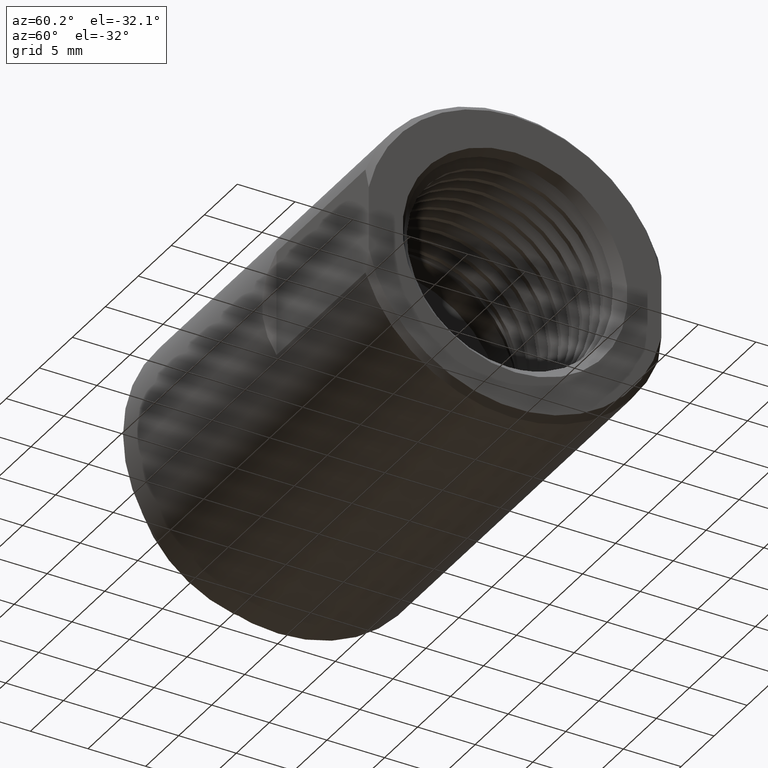
[diagram: clean part render]
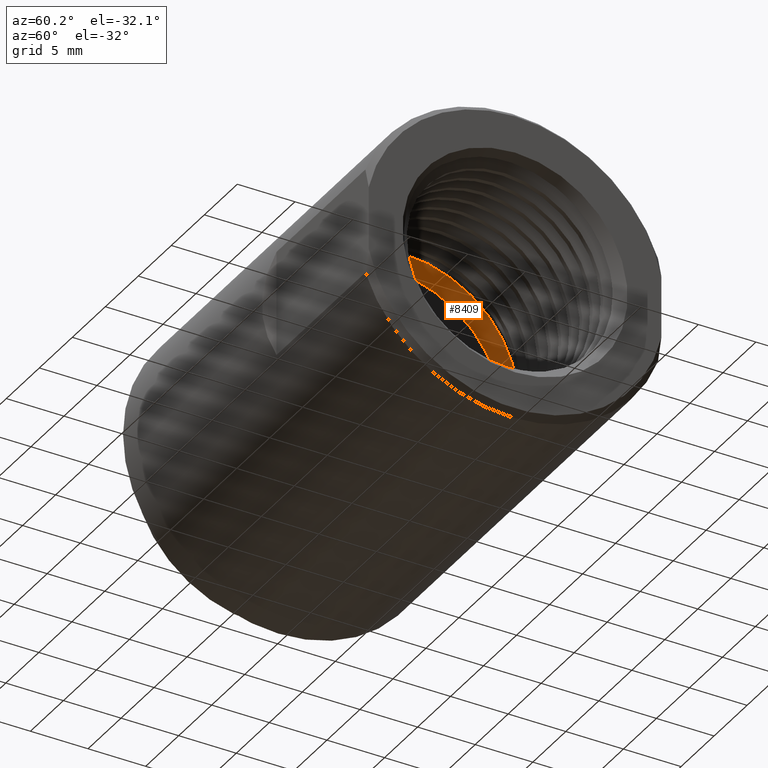
[diagram: same view with one face highlighted and labeled with its STEP entity id]
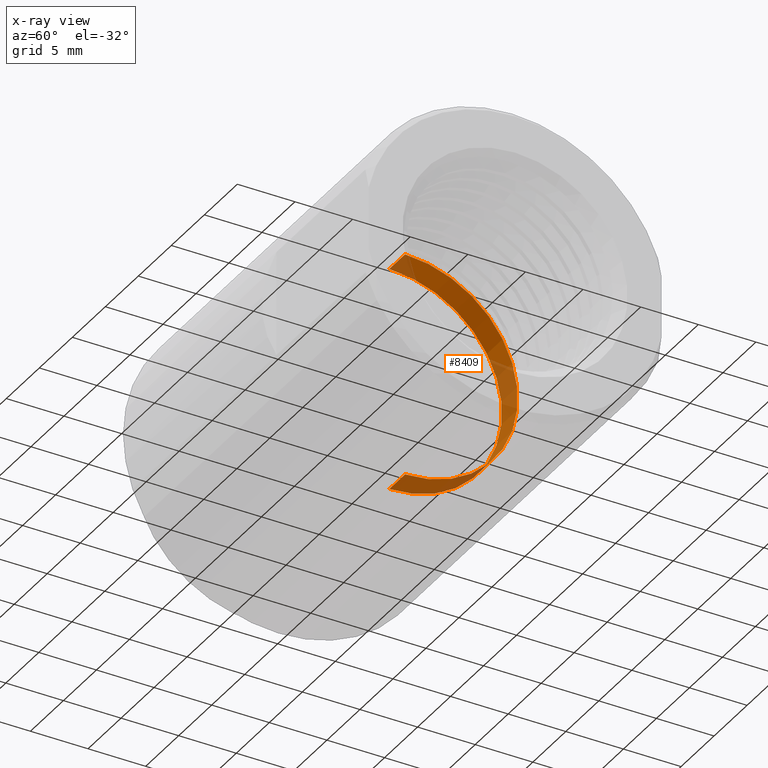
[diagram: x-ray of the same camera — body ghosted, the highlighted face saturated]
A machine part, auxiliary view. The second image highlights one B-rep face of the part: STEP entity #8409.
The next image is the same camera in x-ray: the body ghosted, the highlighted face saturated — about 49% of this face is hidden behind the body in this view.
In plain terms, the highlighted cylindrical surface (partial cylindrical patch) has radius 9.779 mm, axis along (-1, -0, -0).
Its self-contained STEP definition (entity closure, byte-faithful):
#321 = CYLINDRICAL_SURFACE ( 'NONE', #6478, 0.3850000000000001199 ) ;
#473 = EDGE_CURVE ( 'NONE', #10320, #617, #9532, .T. ) ;
#617 = VERTEX_POINT ( 'NONE', #4596 ) ;
#891 = CARTESIAN_POINT ( 'NONE',  ( 0.5629999999999999449, 0.0000000000000000000, 0.0000000000000000000 ) ) ;
#925 = VERTEX_POINT ( 'NONE', #2706 ) ;
#1069 = FACE_OUTER_BOUND ( 'NONE', #3981, .T. ) ;
#1585 = LINE ( 'NONE', #10332, #4977 ) ;
#1864 = VERTEX_POINT ( 'NONE', #10195 ) ;
#2640 = DIRECTION ( 'NONE',  ( 0.0000000000000000000, 0.0000000000000000000, 1.000000000000000000 ) ) ;
#2706 = CARTESIAN_POINT ( 'NONE',  ( 0.4689999999999999725, 4.714890176717311117E-17, -0.3850000000000001199 ) ) ;
#2863 = VECTOR ( 'NONE', #6379, 39.37007874015748143 ) ;
#3015 = EDGE_CURVE ( 'NONE', #1864, #925, #7154, .T. ) ;
#3182 = CARTESIAN_POINT ( 'NONE',  ( 0.5629999999999999449, 0.0000000000000000000, 0.3850000000000001199 ) ) ;
#3504 = DIRECTION ( 'NONE',  ( -1.000000000000000000, -0.0000000000000000000, -0.0000000000000000000 ) ) ;
#3566 = ORIENTED_EDGE ( 'NONE', *, *, #3015, .T. ) ;
#3659 = DIRECTION ( 'NONE',  ( -1.000000000000000000, -0.0000000000000000000, -0.0000000000000000000 ) ) ;
#3742 = DIRECTION ( 'NONE',  ( -1.000000000000000000, -0.0000000000000000000, -0.0000000000000000000 ) ) ;
#3981 = EDGE_LOOP ( 'NONE', ( #5158, #10588, #5725, #3566 ) ) ;
#4596 = CARTESIAN_POINT ( 'NONE',  ( 0.5629999999999999449, 4.714890176717311733E-17, -0.3850000000000001199 ) ) ;
#4698 = DIRECTION ( 'NONE',  ( 0.0000000000000000000, 0.0000000000000000000, 1.000000000000000000 ) ) ;
#4760 = EDGE_CURVE ( 'NONE', #617, #925, #7174, .T. ) ;
#4977 = VECTOR ( 'NONE', #5945, 39.37007874015748143 ) ;
#5158 = ORIENTED_EDGE ( 'NONE', *, *, #4760, .F. ) ;
#5725 = ORIENTED_EDGE ( 'NONE', *, *, #6899, .T. ) ;
#5945 = DIRECTION ( 'NONE',  ( -1.000000000000000000, -0.0000000000000000000, -0.0000000000000000000 ) ) ;
#6353 = CARTESIAN_POINT ( 'NONE',  ( 0.0000000000000000000, 0.0000000000000000000, 0.0000000000000000000 ) ) ;
#6379 = DIRECTION ( 'NONE',  ( -1.000000000000000000, -0.0000000000000000000, -0.0000000000000000000 ) ) ;
#6478 = AXIS2_PLACEMENT_3D ( 'NONE', #6353, #3742, #9017 ) ;
#6899 = EDGE_CURVE ( 'NONE', #10320, #1864, #1585, .T. ) ;
#7154 = CIRCLE ( 'NONE', #8093, 0.3850000000000001199 ) ;
#7174 = LINE ( 'NONE', #9957, #2863 ) ;
#7497 = AXIS2_PLACEMENT_3D ( 'NONE', #891, #3504, #2640 ) ;
#8093 = AXIS2_PLACEMENT_3D ( 'NONE', #9911, #3659, #4698 ) ;
#8409 = ADVANCED_FACE ( 'NONE', ( #1069 ), #321, .F. ) ;
#9017 = DIRECTION ( 'NONE',  ( 0.0000000000000000000, 0.0000000000000000000, 1.000000000000000000 ) ) ;
#9532 = CIRCLE ( 'NONE', #7497, 0.3850000000000001199 ) ;
#9911 = CARTESIAN_POINT ( 'NONE',  ( 0.4689999999999999725, 0.0000000000000000000, 0.0000000000000000000 ) ) ;
#9957 = CARTESIAN_POINT ( 'NONE',  ( 0.0000000000000000000, 4.714890176717311117E-17, -0.3850000000000001199 ) ) ;
#10195 = CARTESIAN_POINT ( 'NONE',  ( 0.4689999999999999725, 0.0000000000000000000, 0.3850000000000001199 ) ) ;
#10320 = VERTEX_POINT ( 'NONE', #3182 ) ;
#10332 = CARTESIAN_POINT ( 'NONE',  ( 0.0000000000000000000, 0.0000000000000000000, 0.3850000000000001199 ) ) ;
#10588 = ORIENTED_EDGE ( 'NONE', *, *, #473, .F. ) ;